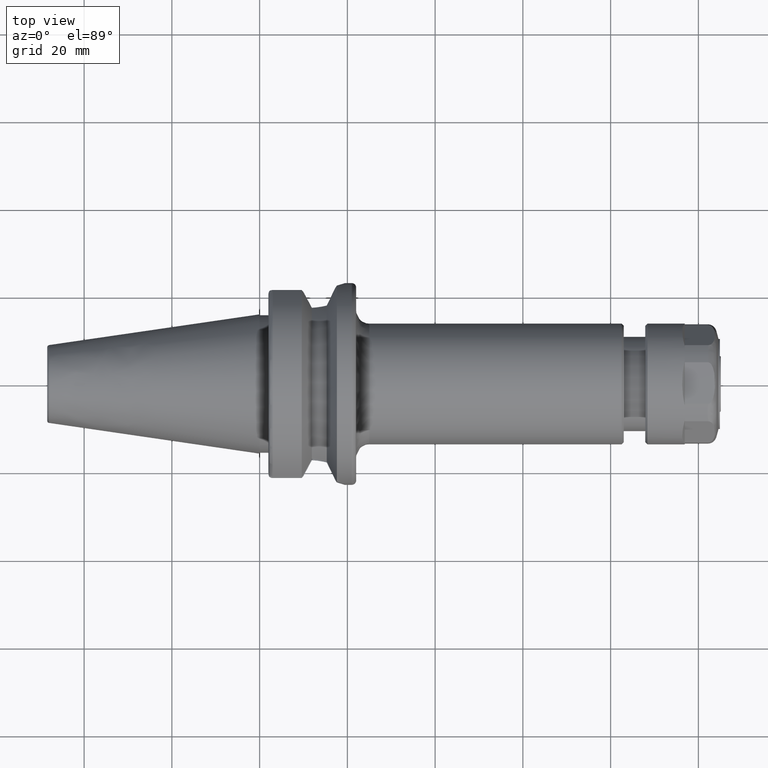
[diagram: clean part render]
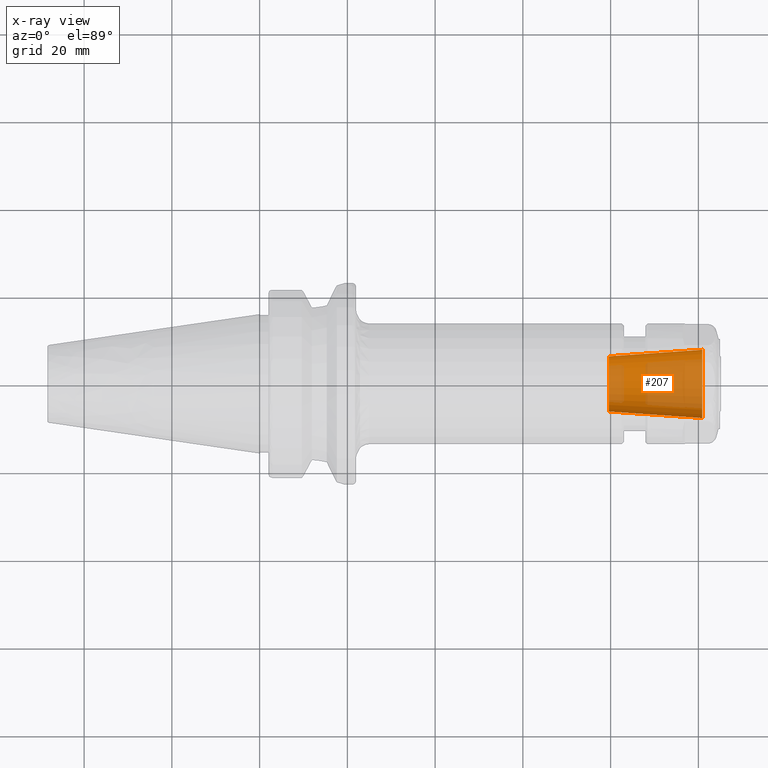
[diagram: x-ray — body ghosted, one internal face saturated and labeled with its STEP entity id]
A machine part, top view, then the same camera in x-ray: the body is ghosted and one INTERNAL B-rep face — a face not visible from any outside direction — is saturated and labeled: STEP entity #207.
In plain terms, the highlighted face is a freeform B-spline surface patch.
Its self-contained STEP definition (entity closure, byte-faithful):
#207=ADVANCED_FACE('',(#594),#593,.T.);
#593=( BOUNDED_SURFACE() B_SPLINE_SURFACE( 2,1,((#2486,#2487),(#2488,#2489),(#2490,#2491),(#2492,#2493),(#2494,#2495)), .UNSPECIFIED.,.F.,.F.,.F.) B_SPLINE_SURFACE_WITH_KNOTS((3,2,3),(2,2),(0.00000000000E+00,5.00000000000E-01,1.00000000000E+00),(0.00000000000E+00,1.00000000000E+00), .UNSPECIFIED. ) GEOMETRIC_REPRESENTATION_ITEM() RATIONAL_B_SPLINE_SURFACE(((1.00000000000E+00,1.00000000000E+00),(7.07106781187E-01,7.07106781187E-01),(1.00000000000E+00,1.00000000000E+00),(7.07106781187E-01,7.07106781187E-01),(1.00000000000E+00,1.00000000000E+00))) REPRESENTATION_ITEM('') SURFACE() );
#594=FACE_OUTER_BOUND('',#2496,.T.);
#2486=CARTESIAN_POINT('',(7.96000000000E+01,-6.28327347218E+00,-1.53895814918E-15));
#2487=CARTESIAN_POINT('',(1.00900000000E+02,-7.77271456658E+00,-1.90376600293E-15));
#2488=CARTESIAN_POINT('',(7.96000000000E+01,-6.28327347218E+00,-6.28327347218E+00));
#2489=CARTESIAN_POINT('',(1.00900000000E+02,-7.77271456658E+00,-7.77271456658E+00));
#2490=CARTESIAN_POINT('',(7.96000000000E+01,1.15421861188E-15,-6.28327347218E+00));
#2491=CARTESIAN_POINT('',(1.00900000000E+02,1.42782450220E-15,-7.77271456658E+00));
#2492=CARTESIAN_POINT('',(7.96000000000E+01,6.28327347218E+00,-6.28327347218E+00));
#2493=CARTESIAN_POINT('',(1.00900000000E+02,7.77271456658E+00,-7.77271456658E+00));
#2494=CARTESIAN_POINT('',(7.96000000000E+01,6.28327347218E+00,7.69479074588E-16));
#2495=CARTESIAN_POINT('',(1.00900000000E+02,7.77271456658E+00,9.51883001465E-16));
#2496=EDGE_LOOP('',(#4084,#4085,#4086,#4087));
#4084=ORIENTED_EDGE('',*,*,#4881,.F.);
#4085=ORIENTED_EDGE('',*,*,#4918,.F.);
#4086=ORIENTED_EDGE('',*,*,#4884,.T.);
#4087=ORIENTED_EDGE('',*,*,#4919,.T.);
#4881=EDGE_CURVE('',#5365,#5364,#5372,.T.);
#4884=EDGE_CURVE('',#5392,#5393,#5394,.T.);
#4918=EDGE_CURVE('',#5392,#5365,#5614,.T.);
#4919=EDGE_CURVE('',#5393,#5364,#5620,.T.);
#5364=VERTEX_POINT('',#8228);
#5365=VERTEX_POINT('',#8229);
#5372=CIRCLE('',#8237,7.77271456658E+00);
#5392=VERTEX_POINT('',#8248);
#5393=VERTEX_POINT('',#8249);
#5394=CIRCLE('',#8253,6.28327347218E+00);
#5614=(BOUNDED_CURVE() B_SPLINE_CURVE(1,(#8370,#8371),.UNSPECIFIED.,.F.,.F.) B_SPLINE_CURVE_WITH_KNOTS((2,2),(0.00000000000E+00,1.00000000000E+00),.UNSPECIFIED.) CURVE() GEOMETRIC_REPRESENTATION_ITEM() RATIONAL_B_SPLINE_CURVE((1.00000000000E+00,1.00000000000E+00)) REPRESENTATION_ITEM('') );
#5620=(BOUNDED_CURVE() B_SPLINE_CURVE(1,(#8372,#8373),.UNSPECIFIED.,.F.,.F.) B_SPLINE_CURVE_WITH_KNOTS((2,2),(0.00000000000E+00,1.00000000000E+00),.UNSPECIFIED.) CURVE() GEOMETRIC_REPRESENTATION_ITEM() RATIONAL_B_SPLINE_CURVE((7.50000000000E-01,7.50000000000E-01)) REPRESENTATION_ITEM('') );
#8228=CARTESIAN_POINT('',(1.00900000000E+02,7.77271456658E+00,0.00000000000E+00));
#8229=CARTESIAN_POINT('',(1.00900000000E+02,-7.77271456658E+00,5.92118946467E-16));
#8234=CARTESIAN_POINT('',(1.00900000000E+02,0.00000000000E+00,0.00000000000E+00));
#8235=DIRECTION('',(1.00000000000E+00,0.00000000000E+00,0.00000000000E+00));
#8236=DIRECTION('',(0.00000000000E+00,1.00000000000E+00,-1.22464679915E-16));
#8237=AXIS2_PLACEMENT_3D('',#8234,#8235,#8236);
#8248=CARTESIAN_POINT('',(7.96000000000E+01,-6.28327347218E+00,-2.96059473233E-16));
#8249=CARTESIAN_POINT('',(7.96000000000E+01,6.28327347218E+00,0.00000000000E+00));
#8250=CARTESIAN_POINT('',(7.96000000000E+01,0.00000000000E+00,0.00000000000E+00));
#8251=DIRECTION('',(1.00000000000E+00,0.00000000000E+00,0.00000000000E+00));
#8252=DIRECTION('',(0.00000000000E+00,1.00000000000E+00,-1.22464679915E-16));
#8253=AXIS2_PLACEMENT_3D('',#8250,#8251,#8252);
#8370=CARTESIAN_POINT('',(7.96000000000E+01,-6.28327347218E+00,-1.53895814918E-15));
#8371=CARTESIAN_POINT('',(1.00900000000E+02,-7.77271456658E+00,-1.90376600293E-15));
#8372=CARTESIAN_POINT('',(7.96000000000E+01,6.28327347218E+00,2.07241631263E-15));
#8373=CARTESIAN_POINT('',(1.00900000000E+02,7.77271456658E+00,2.36847578587E-15));